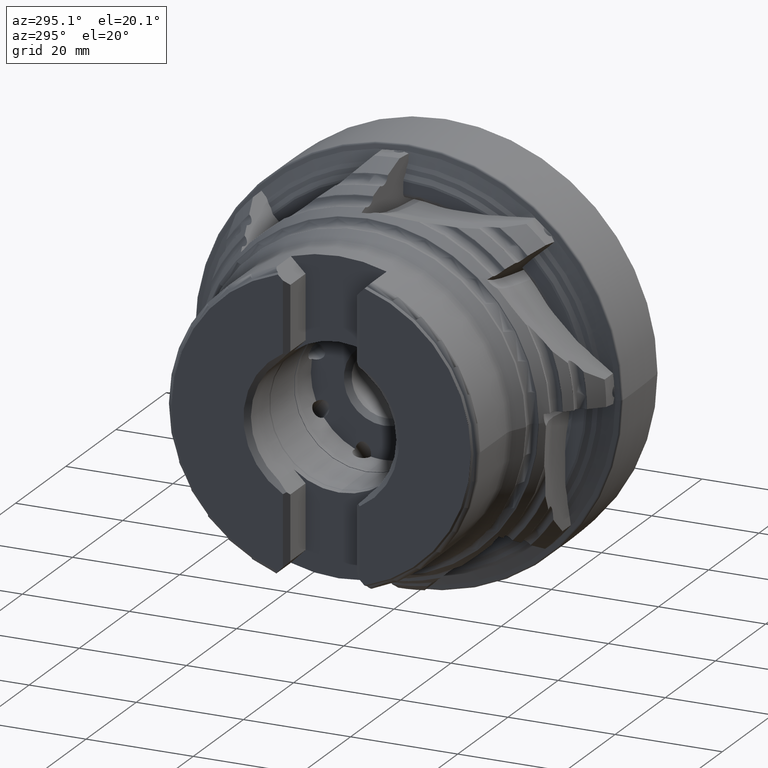
[diagram: clean part render]
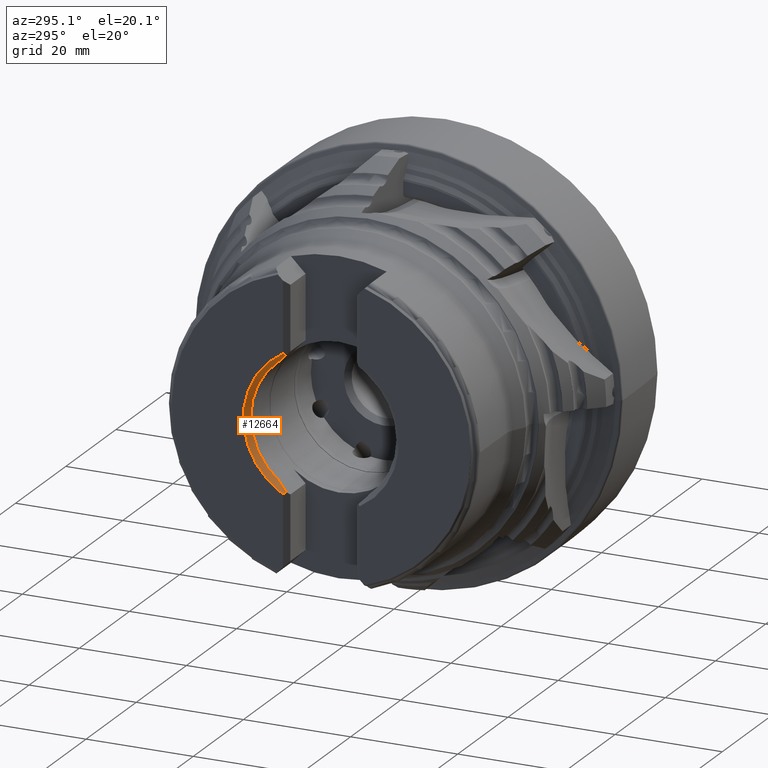
[diagram: same view with one face highlighted and labeled with its STEP entity id]
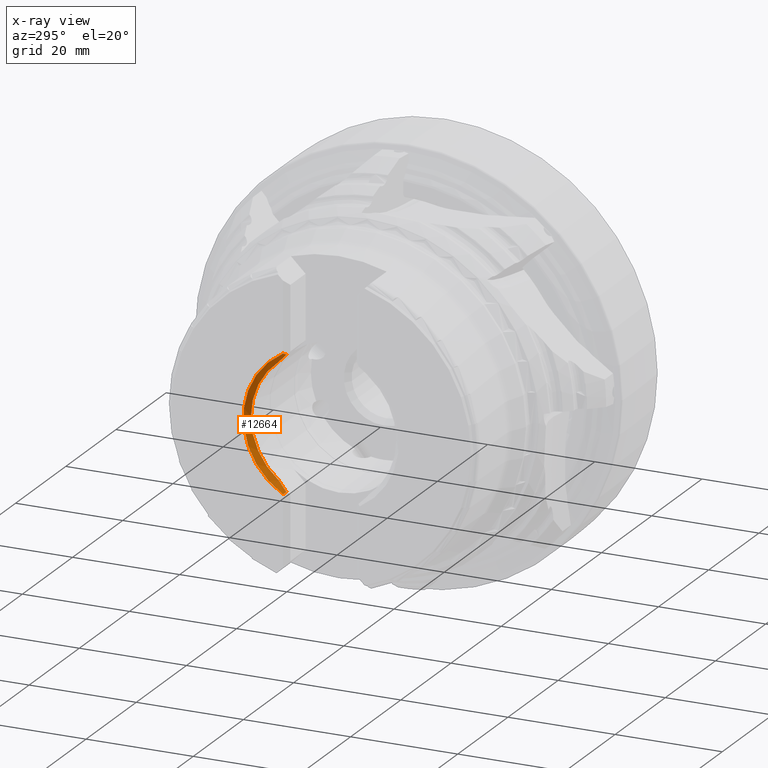
[diagram: x-ray of the same camera — body ghosted, the highlighted face saturated]
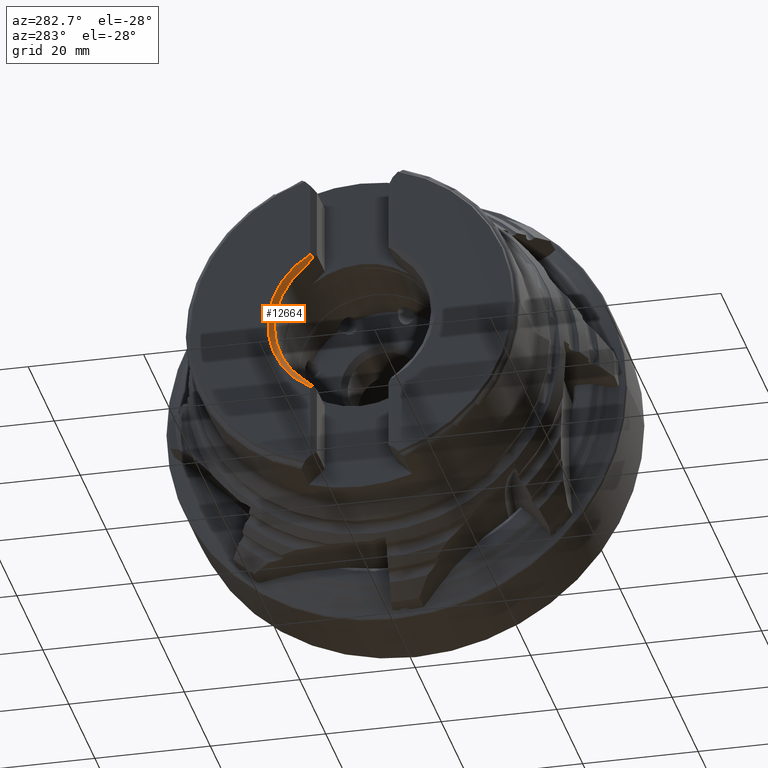
[diagram: same view with one face highlighted and labeled with its STEP entity id]
A machine part, auxiliary view. The second image highlights one B-rep face of the part: STEP entity #12664.
The next image is the same camera in x-ray: the body ghosted, the highlighted face saturated — about 0% of this face is hidden behind the body in this view.
A second angle (auxiliary view) of the same face is appended — the face is thin or edge-on in the first view.
In plain terms, the highlighted conical surface has half-angle 45 deg.
Its self-contained STEP definition (entity closure, byte-faithful):
#94 = B_SPLINE_CURVE_WITH_KNOTS ( 'NONE', 3,
 ( #16994, #1719, #13086, #4786 ),
 .UNSPECIFIED., .F., .F.,
 ( 4, 4 ),
 ( 3.878959614448864246E-18, 0.0006948844382760337342 ),
 .UNSPECIFIED. ) ;
#530 = CARTESIAN_POINT ( 'NONE',  ( -48.04999999999999716, 0.0000000000000000000, 0.0000000000000000000 ) ) ;
#974 = CARTESIAN_POINT ( 'NONE',  ( -48.54647231358743653, 6.696472313587610969, -12.37592790967256207 ) ) ;
#1024 = EDGE_LOOP ( 'NONE', ( #15728, #12160, #5959, #12753, #17118, #1322 ) ) ;
#1322 = ORIENTED_EDGE ( 'NONE', *, *, #16239, .T. ) ;
#1719 = CARTESIAN_POINT ( 'NONE',  ( -48.69740571084734881, 6.847405710847351834, 12.46587137192585359 ) ) ;
#2256 = CARTESIAN_POINT ( 'NONE',  ( -48.99999999999998579, 7.149999999999986144, 12.64330356354698459 ) ) ;
#2507 = CIRCLE ( 'NONE', #12699, 13.57499999999999396 ) ;
#3120 = VERTEX_POINT ( 'NONE', #10045 ) ;
#3426 = DIRECTION ( 'NONE',  ( -1.000000000000000000, 0.0000000000000000000, 0.0000000000000000000 ) ) ;
#4545 = AXIS2_PLACEMENT_3D ( 'NONE', #4796, #4895, #17461 ) ;
#4786 = CARTESIAN_POINT ( 'NONE',  ( -48.99999999999998579, 7.149999999999986144, 12.64330356354698459 ) ) ;
#4796 = CARTESIAN_POINT ( 'NONE',  ( -48.99999999999998579, 0.0000000000000000000, -1.551487288390696723E-15 ) ) ;
#4861 = AXIS2_PLACEMENT_3D ( 'NONE', #5064, #3426, #9164 ) ;
#4895 = DIRECTION ( 'NONE',  ( -1.000000000000000000, -0.0000000000000000000, 1.068149596138170374E-16 ) ) ;
#5064 = CARTESIAN_POINT ( 'NONE',  ( -48.04999999999999716, 0.0000000000000000000, 0.0000000000000000000 ) ) ;
#5656 = CARTESIAN_POINT ( 'NONE',  ( -48.15155960679503266, 7.793884214919777342, 11.26596448933205430 ) ) ;
#5826 = DIRECTION ( 'NONE',  ( 0.0000000000000000000, 0.0000000000000000000, -1.000000000000000000 ) ) ;
#5959 = ORIENTED_EDGE ( 'NONE', *, *, #10717, .T. ) ;
#6092 = DIRECTION ( 'NONE',  ( 1.000000000000000000, -0.0000000000000000000, -0.0000000000000000000 ) ) ;
#6705 = CARTESIAN_POINT ( 'NONE',  ( -48.69740571084734881, 6.847405710847343840, -12.46587137192585892 ) ) ;
#6884 = EDGE_CURVE ( 'NONE', #7005, #15872, #8561, .T. ) ;
#7005 = VERTEX_POINT ( 'NONE', #15623 ) ;
#7051 = CARTESIAN_POINT ( 'NONE',  ( -48.04999999999999716, 8.351320339999993791, -10.70215275440890856 ) ) ;
#7677 = CARTESIAN_POINT ( 'NONE',  ( -48.99999999999998579, 7.149999999999976374, -12.64330356354699170 ) ) ;
#7756 = EDGE_CURVE ( 'NONE', #15872, #3120, #2507, .T. ) ;
#7892 = EDGE_CURVE ( 'NONE', #14499, #14937, #12403, .T. ) ;
#7969 = CARTESIAN_POINT ( 'NONE',  ( -48.84858814037048802, 6.998588140370479493, -12.55498309736858786 ) ) ;
#8561 = B_SPLINE_CURVE_WITH_KNOTS ( 'NONE', 3,
 ( #974, #12073, #13724, #15186 ),
 .UNSPECIFIED., .F., .F.,
 ( 4, 4 ),
 ( 0.003662915339923407659, 0.006061476870764726486 ),
 .UNSPECIFIED. ) ;
#9164 = DIRECTION ( 'NONE',  ( 0.0000000000000000000, 0.0000000000000000000, 1.000000000000000000 ) ) ;
#9770 = CARTESIAN_POINT ( 'NONE',  ( -48.54647231358747916, 6.696472313587483960, 12.37592790967269174 ) ) ;
#10045 = CARTESIAN_POINT ( 'NONE',  ( -48.04999999999999716, 8.351320339999993791, 10.70215275440890856 ) ) ;
#10548 = EDGE_CURVE ( 'NONE', #17779, #14499, #94, .T. ) ;
#10717 = EDGE_CURVE ( 'NONE', #14937, #7005, #16057, .T. ) ;
#11612 = CARTESIAN_POINT ( 'NONE',  ( -48.54647231358747916, 6.696472313587483960, 12.37592790967269174 ) ) ;
#12073 = CARTESIAN_POINT ( 'NONE',  ( -48.32318873704809903, 7.236229504612367691, -11.82999730952511008 ) ) ;
#12160 = ORIENTED_EDGE ( 'NONE', *, *, #7892, .T. ) ;
#12248 = CARTESIAN_POINT ( 'NONE',  ( -48.54647231358743653, 6.696472313587610969, -12.37592790967256207 ) ) ;
#12403 = CIRCLE ( 'NONE', #4545, 14.52499999999998970 ) ;
#12664 = ADVANCED_FACE ( 'NONE', ( #13190 ), #15913, .F. ) ;
#12699 = AXIS2_PLACEMENT_3D ( 'NONE', #530, #6092, #5826 ) ;
#12753 = ORIENTED_EDGE ( 'NONE', *, *, #6884, .T. ) ;
#13086 = CARTESIAN_POINT ( 'NONE',  ( -48.84858814037048802, 6.998588140370489263, 12.55498309736857898 ) ) ;
#13190 = FACE_OUTER_BOUND ( 'NONE', #1024, .T. ) ;
#13724 = CARTESIAN_POINT ( 'NONE',  ( -48.15284136373393409, 7.786848961004718461, -11.27308020813284628 ) ) ;
#13958 = CARTESIAN_POINT ( 'NONE',  ( -48.32283134195594698, 7.237093457859667289, 11.82912347491458505 ) ) ;
#14499 = VERTEX_POINT ( 'NONE', #2256 ) ;
#14628 = CARTESIAN_POINT ( 'NONE',  ( -48.99999999999998579, 7.149999999999976374, -12.64330356354699170 ) ) ;
#14937 = VERTEX_POINT ( 'NONE', #7677 ) ;
#15186 = CARTESIAN_POINT ( 'NONE',  ( -48.04999999999999716, 8.351320339999993791, -10.70215275440890856 ) ) ;
#15227 = CARTESIAN_POINT ( 'NONE',  ( -48.04999999999999716, 8.351320339999993791, 10.70215275440890856 ) ) ;
#15623 = CARTESIAN_POINT ( 'NONE',  ( -48.54647231358743653, 6.696472313587610969, -12.37592790967256207 ) ) ;
#15728 = ORIENTED_EDGE ( 'NONE', *, *, #10548, .T. ) ;
#15872 = VERTEX_POINT ( 'NONE', #7051 ) ;
#15913 = CONICAL_SURFACE ( 'NONE', #4861, 13.57499999999999396, 0.7853981633974500554 ) ;
#16057 = B_SPLINE_CURVE_WITH_KNOTS ( 'NONE', 3,
 ( #14628, #7969, #6705, #12248 ),
 .UNSPECIFIED., .F., .F.,
 ( 4, 4 ),
 ( 7.647610968009224263E-05, 0.0007713605479561246080 ),
 .UNSPECIFIED. ) ;
#16239 = EDGE_CURVE ( 'NONE', #3120, #17779, #16643, .T. ) ;
#16643 = B_SPLINE_CURVE_WITH_KNOTS ( 'NONE', 3,
 ( #15227, #5656, #13958, #9770 ),
 .UNSPECIFIED., .F., .F.,
 ( 4, 4 ),
 ( 0.002714589599142738785, 0.005109202506670432360 ),
 .UNSPECIFIED. ) ;
#16994 = CARTESIAN_POINT ( 'NONE',  ( -48.54647231358747916, 6.696472313587483960, 12.37592790967269174 ) ) ;
#17118 = ORIENTED_EDGE ( 'NONE', *, *, #7756, .T. ) ;
#17461 = DIRECTION ( 'NONE',  ( 0.0000000000000000000, 0.0000000000000000000, -1.000000000000000000 ) ) ;
#17779 = VERTEX_POINT ( 'NONE', #11612 ) ;